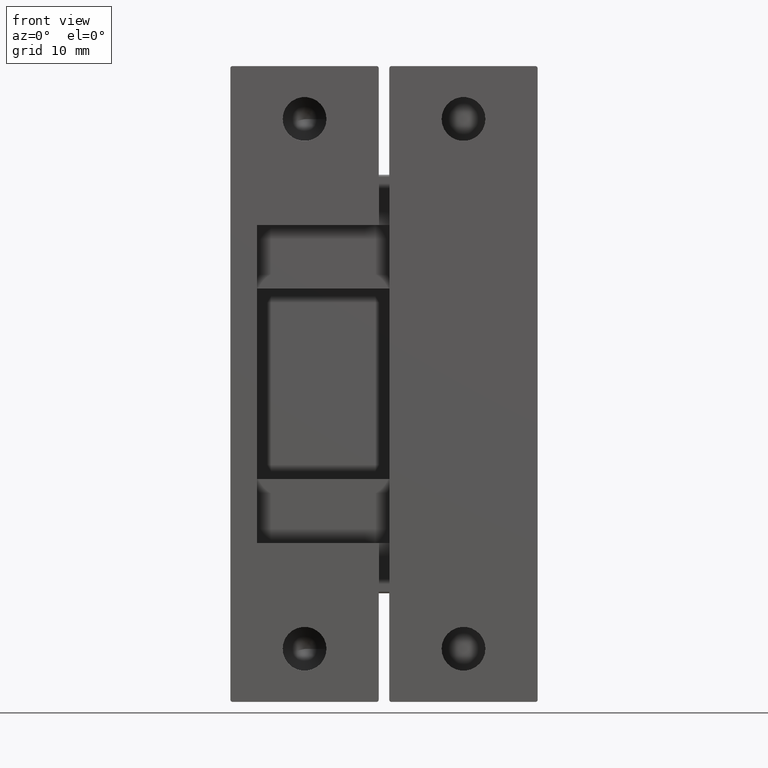
[diagram: clean part render]
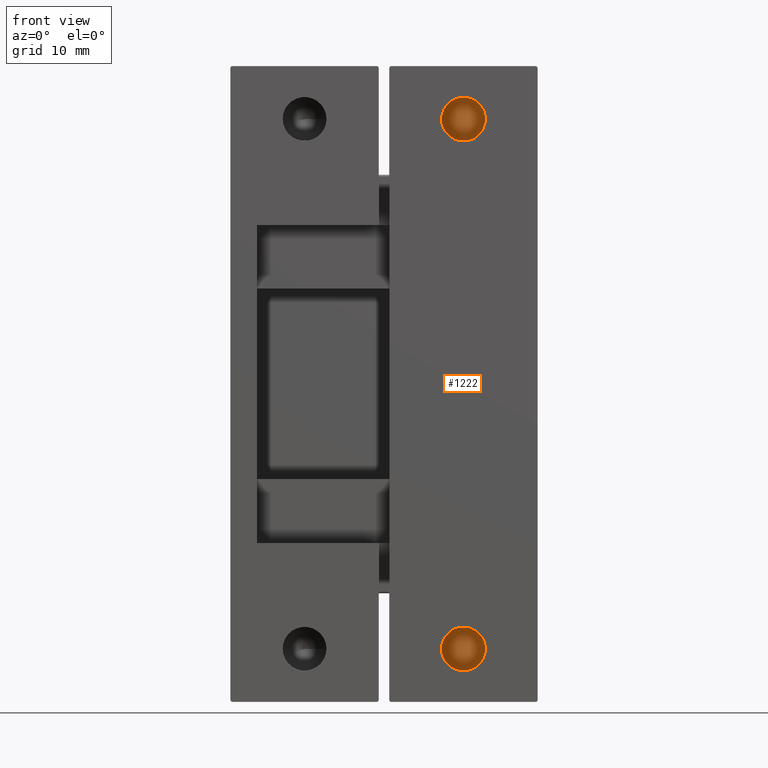
[diagram: same view with one face highlighted and labeled with its STEP entity id]
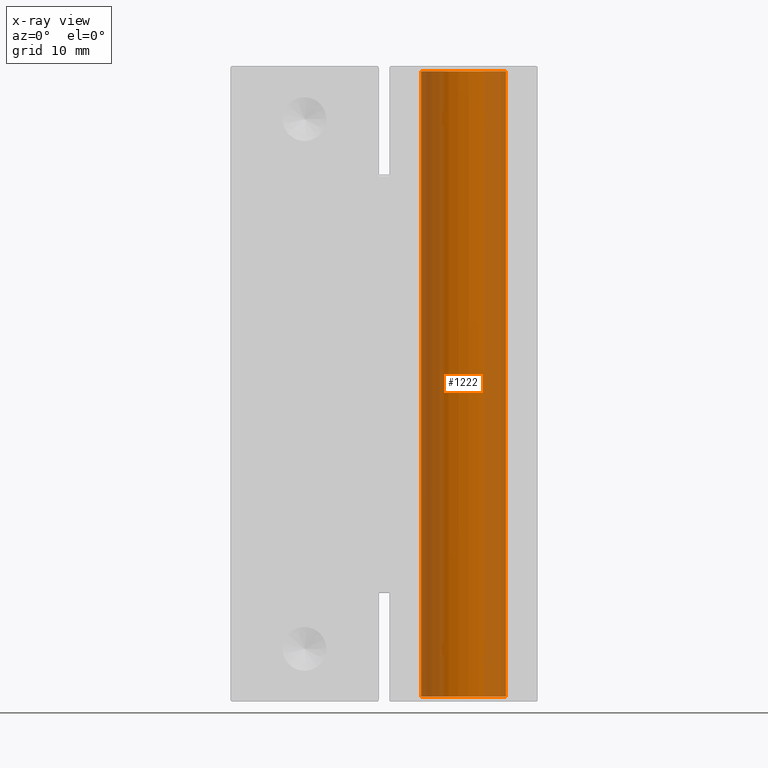
[diagram: x-ray of the same camera — body ghosted, the highlighted face saturated]
A machine part, front view. The second image highlights one B-rep face of the part: STEP entity #1222.
The next image is the same camera in x-ray: the body ghosted, the highlighted face saturated — about 53% of this face is hidden behind the body in this view.
In plain terms, the highlighted cylindrical surface (bore or boss wall) has radius 4 mm, axis along (-0, 0, -1).
Its self-contained STEP definition (entity closure, byte-faithful):
#58=FACE_BOUND('',#268,.T.);
#172=FACE_OUTER_BOUND('',#267,.T.);
#267=EDGE_LOOP('',(#1120));
#268=EDGE_LOOP('',(#1121));
#523=CIRCLE('',#1364,4.);
#525=CIRCLE('',#1367,4.);
#633=VERTEX_POINT('',#2169);
#635=VERTEX_POINT('',#2174);
#796=EDGE_CURVE('',#633,#633,#523,.T.);
#798=EDGE_CURVE('',#635,#635,#525,.T.);
#1120=ORIENTED_EDGE('',*,*,#798,.F.);
#1121=ORIENTED_EDGE('',*,*,#796,.F.);
#1153=CYLINDRICAL_SURFACE('',#1366,4.);
#1222=ADVANCED_FACE('',(#172,#58),#1153,.T.);
#1364=AXIS2_PLACEMENT_3D('',#2170,#1737,#1738);
#1366=AXIS2_PLACEMENT_3D('',#2173,#1741,#1742);
#1367=AXIS2_PLACEMENT_3D('',#2175,#1743,#1744);
#1737=DIRECTION('center_axis',(0.,0.,-1.));
#1738=DIRECTION('ref_axis',(-1.,0.,0.));
#1741=DIRECTION('center_axis',(0.,0.,-1.));
#1742=DIRECTION('ref_axis',(-1.,0.,0.));
#1743=DIRECTION('center_axis',(0.,0.,1.));
#1744=DIRECTION('ref_axis',(-1.,0.,0.));
#2169=CARTESIAN_POINT('',(4.,-2.71030476890925E-15,-59.5));
#2170=CARTESIAN_POINT('Origin',(2.77555756156289E-16,-2.22044604925031E-15,
-59.5));
#2173=CARTESIAN_POINT('Origin',(2.77555756156289E-16,-2.22044604925031E-15,
0.));
#2174=CARTESIAN_POINT('',(4.,-1.73058732959137E-15,-0.5));
#2175=CARTESIAN_POINT('Origin',(2.77555756156289E-16,-2.22044604925031E-15,
-0.5));